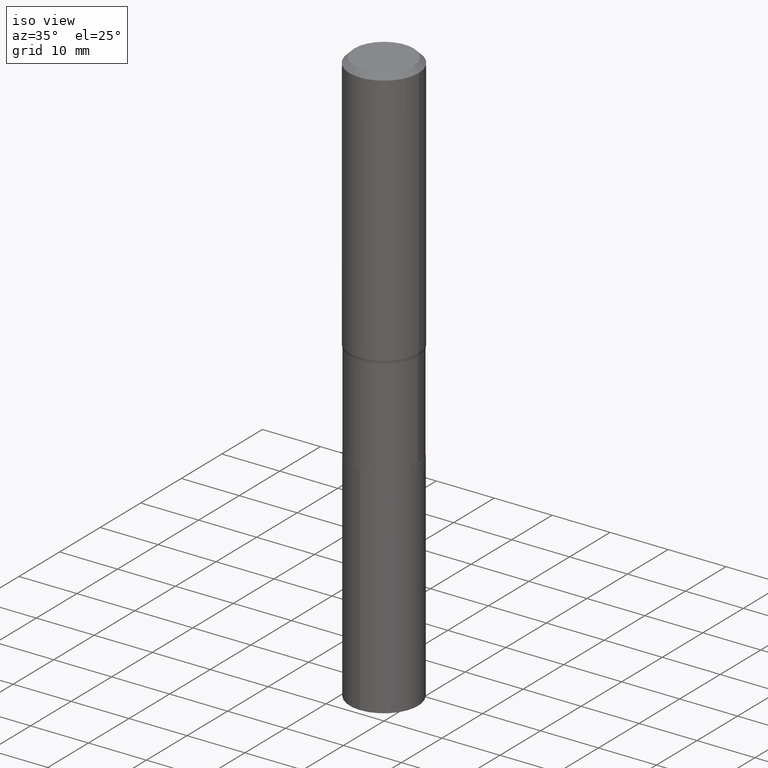
[diagram: clean part render]
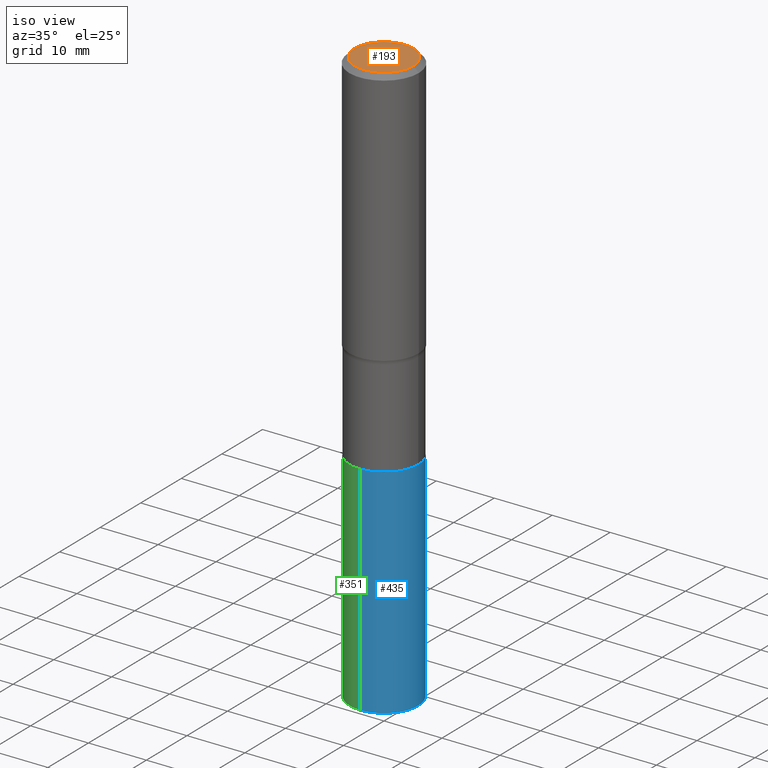
[diagram: same view with three faces highlighted in distinct colors, each labeled with its STEP entity id]
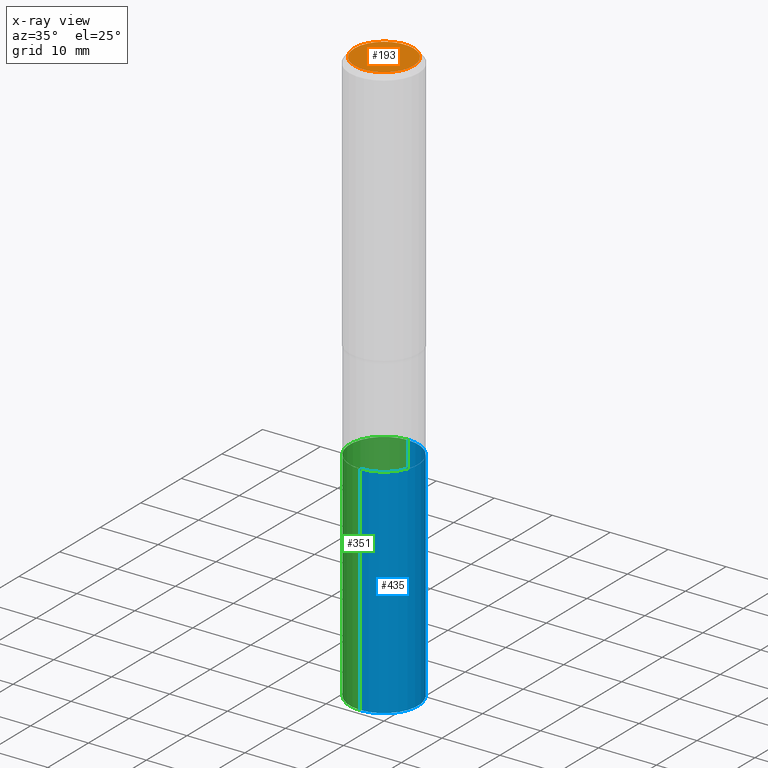
[diagram: x-ray of the same camera — body ghosted, the three highlighted faces saturated]
A machine part, iso view with three faces highlighted in distinct colors.
The next image is the same camera in x-ray (body ghosted, the three faces saturated) — at least one of them is partly hidden behind the body in this view.
Their STEP definitions:

[orange] entity #193 — the highlighted planar face has unit normal (0, -0, -1).
#2 = DIRECTION ( 'NONE',  ( 2.438088387897960049E-29, -3.491481338843145188E-15, -1.000000000000000000 ) ) ;
#13 = ORIENTED_EDGE ( 'NONE', *, *, #346, .T. ) ;
#62 = CARTESIAN_POINT ( 'NONE',  ( -0.2007700000000000040, 1.463821008716677338E-15, 4.096137381438094301E-18 ) ) ;
#63 = ORIENTED_EDGE ( 'NONE', *, *, #291, .T. ) ;
#69 = CARTESIAN_POINT ( 'NONE',  ( -1.001697619218023151E-46, 1.430158722866391908E-32, 4.096137381448114529E-18 ) ) ;
#90 = AXIS2_PLACEMENT_3D ( 'NONE', #69, #240, #102 ) ;
#99 = VERTEX_POINT ( 'NONE', #372 ) ;
#102 = DIRECTION ( 'NONE',  ( 1.000000000000000000, -6.982962677686266711E-15, 4.876140833081945105E-29 ) ) ;
#171 = CIRCLE ( 'NONE', #201, 0.2007700000000000040 ) ;
#180 = CARTESIAN_POINT ( 'NONE',  ( -5.008488096090115757E-47, 7.150793614331959538E-33, 2.048068690724057264E-18 ) ) ;
#193 = ADVANCED_FACE ( 'NONE', ( #417 ), #374, .F. ) ;
#201 = AXIS2_PLACEMENT_3D ( 'NONE', #319, #407, #364 ) ;
#240 = DIRECTION ( 'NONE',  ( -2.445468806185136597E-29, 3.491481338843145583E-15, 1.000000000000000000 ) ) ;
#247 = AXIS2_PLACEMENT_3D ( 'NONE', #180, #2, #292 ) ;
#250 = VERTEX_POINT ( 'NONE', #62 ) ;
#268 = CIRCLE ( 'NONE', #90, 0.2007700000000000040 ) ;
#284 = EDGE_LOOP ( 'NONE', ( #13, #63 ) ) ;
#291 = EDGE_CURVE ( 'NONE', #99, #250, #268, .T. ) ;
#292 = DIRECTION ( 'NONE',  ( -1.000000000000000000, 6.982962677686265922E-15, -4.876176775795935793E-29 ) ) ;
#319 = CARTESIAN_POINT ( 'NONE',  ( -1.001697619218023151E-46, 1.430158722866391908E-32, 4.096137381448114529E-18 ) ) ;
#346 = EDGE_CURVE ( 'NONE', #250, #99, #171, .T. ) ;
#364 = DIRECTION ( 'NONE',  ( 1.000000000000000000, -6.982962677686266711E-15, 4.876140833081945105E-29 ) ) ;
#372 = CARTESIAN_POINT ( 'NONE',  ( 0.2007700000000000040, -1.560767496960719672E-15, 4.096137381458473721E-18 ) ) ;
#374 = PLANE ( 'NONE',  #247 ) ;
#407 = DIRECTION ( 'NONE',  ( -2.445468806185136597E-29, 3.491481338843145583E-15, 1.000000000000000000 ) ) ;
#417 = FACE_OUTER_BOUND ( 'NONE', #284, .T. ) ;

[blue] entity #435 — the highlighted cylindrical surface (partial cylindrical patch) has radius 5.9004 mm, axis along (-0, 0, 1).
#3 = DIRECTION ( 'NONE',  ( -6.982962677686265922E-15, -1.000000000000000000, 3.527999991817817286E-15 ) ) ;
#8 = FACE_OUTER_BOUND ( 'NONE', #26, .T. ) ;
#9 = CIRCLE ( 'NONE', #163, 0.2323000000000000065 ) ;
#16 = VERTEX_POINT ( 'NONE', #221 ) ;
#20 = AXIS2_PLACEMENT_3D ( 'NONE', #295, #47, #3 ) ;
#22 = LINE ( 'NONE', #329, #83 ) ;
#26 = EDGE_LOOP ( 'NONE', ( #278, #65, #206, #325 ) ) ;
#47 = DIRECTION ( 'NONE',  ( -2.445425754346182208E-29, 3.491542991526886614E-15, 1.000000000000000000 ) ) ;
#64 = CARTESIAN_POINT ( 'NONE',  ( 5.969144809017299038E-29, -8.522356799982232966E-15, -2.440900000000000070 ) ) ;
#65 = ORIENTED_EDGE ( 'NONE', *, *, #294, .T. ) ;
#70 = CARTESIAN_POINT ( 'NONE',  ( -1.622142230026423645E-15, -0.2323000000000136622, -3.921844707738493696 ) ) ;
#80 = CYLINDRICAL_SURFACE ( 'NONE', #20, 0.2323000000000000065 ) ;
#83 = VECTOR ( 'NONE', #287, 39.37007874015748143 ) ;
#108 = EDGE_CURVE ( 'NONE', #165, #16, #186, .T. ) ;
#117 = CARTESIAN_POINT ( 'NONE',  ( 9.590685138083693087E-29, -1.369313891512540688E-14, -3.921844707738494140 ) ) ;
#145 = CARTESIAN_POINT ( 'NONE',  ( -1.622142230026459933E-15, -0.2323000000000085552, -2.440899999999999181 ) ) ;
#151 = DIRECTION ( 'NONE',  ( -2.445425754346182208E-29, 3.491542991526886220E-15, 1.000000000000000000 ) ) ;
#163 = AXIS2_PLACEMENT_3D ( 'NONE', #64, #237, #204 ) ;
#165 = VERTEX_POINT ( 'NONE', #70 ) ;
#186 = CIRCLE ( 'NONE', #279, 0.2323000000000000065 ) ;
#204 = DIRECTION ( 'NONE',  ( -6.982962677686265922E-15, -1.000000000000000000, 3.527999991817817286E-15 ) ) ;
#206 = ORIENTED_EDGE ( 'NONE', *, *, #356, .F. ) ;
#221 = CARTESIAN_POINT ( 'NONE',  ( 1.650590775170807836E-15, 0.2322999999999862675, -3.921844707738494584 ) ) ;
#237 = DIRECTION ( 'NONE',  ( -2.445425754346182208E-29, 3.491542991526886614E-15, 1.000000000000000000 ) ) ;
#262 = DIRECTION ( 'NONE',  ( -2.445425754346182208E-29, 3.491542991526886614E-15, 1.000000000000000000 ) ) ;
#278 = ORIENTED_EDGE ( 'NONE', *, *, #108, .T. ) ;
#279 = AXIS2_PLACEMENT_3D ( 'NONE', #117, #262, #425 ) ;
#287 = DIRECTION ( 'NONE',  ( -2.445425754346182208E-29, 3.491542991526886220E-15, 1.000000000000000000 ) ) ;
#288 = VECTOR ( 'NONE', #151, 39.37007874015748143 ) ;
#294 = EDGE_CURVE ( 'NONE', #16, #348, #22, .T. ) ;
#295 = CARTESIAN_POINT ( 'NONE',  ( 5.969144809017299038E-29, -8.522356799982232966E-15, -2.440900000000000070 ) ) ;
#308 = VERTEX_POINT ( 'NONE', #485 ) ;
#325 = ORIENTED_EDGE ( 'NONE', *, *, #448, .F. ) ;
#329 = CARTESIAN_POINT ( 'NONE',  ( 1.650590775170772140E-15, 0.2322999999999914578, -2.440900000000000514 ) ) ;
#348 = VERTEX_POINT ( 'NONE', #440 ) ;
#356 = EDGE_CURVE ( 'NONE', #308, #348, #9, .T. ) ;
#425 = DIRECTION ( 'NONE',  ( -6.982962677686265922E-15, -1.000000000000000000, 2.351999994545211393E-15 ) ) ;
#435 = ADVANCED_FACE ( 'NONE', ( #8 ), #80, .T. ) ;
#440 = CARTESIAN_POINT ( 'NONE',  ( 1.650590775170808822E-15, 0.2322999999999914578, -2.440900000000000514 ) ) ;
#448 = EDGE_CURVE ( 'NONE', #165, #308, #468, .T. ) ;
#468 = LINE ( 'NONE', #145, #288 ) ;
#485 = CARTESIAN_POINT ( 'NONE',  ( -1.622142230026459933E-15, -0.2323000000000085552, -2.440899999999999181 ) ) ;

[green] entity #351 — the highlighted cylindrical surface (partial cylindrical patch) has radius 5.9004 mm, axis along (-0, 0, 1).
#10 = DIRECTION ( 'NONE',  ( -6.982962677686265922E-15, -1.000000000000000000, 2.351999994545211393E-15 ) ) ;
#16 = VERTEX_POINT ( 'NONE', #221 ) ;
#17 = ORIENTED_EDGE ( 'NONE', *, *, #205, .F. ) ;
#22 = LINE ( 'NONE', #329, #83 ) ;
#35 = CARTESIAN_POINT ( 'NONE',  ( 9.590685138083693087E-29, -1.369313891512540688E-14, -3.921844707738494140 ) ) ;
#39 = AXIS2_PLACEMENT_3D ( 'NONE', #173, #326, #93 ) ;
#70 = CARTESIAN_POINT ( 'NONE',  ( -1.622142230026423645E-15, -0.2323000000000136622, -3.921844707738493696 ) ) ;
#82 = CIRCLE ( 'NONE', #191, 0.2323000000000000065 ) ;
#83 = VECTOR ( 'NONE', #287, 39.37007874015748143 ) ;
#93 = DIRECTION ( 'NONE',  ( -6.982962677686265922E-15, -1.000000000000000000, 3.527999991817817286E-15 ) ) ;
#113 = EDGE_CURVE ( 'NONE', #16, #165, #82, .T. ) ;
#121 = DIRECTION ( 'NONE',  ( -6.982962677686265922E-15, -1.000000000000000000, 3.527999991817817286E-15 ) ) ;
#124 = ORIENTED_EDGE ( 'NONE', *, *, #448, .T. ) ;
#138 = ORIENTED_EDGE ( 'NONE', *, *, #113, .T. ) ;
#145 = CARTESIAN_POINT ( 'NONE',  ( -1.622142230026459933E-15, -0.2323000000000085552, -2.440899999999999181 ) ) ;
#151 = DIRECTION ( 'NONE',  ( -2.445425754346182208E-29, 3.491542991526886220E-15, 1.000000000000000000 ) ) ;
#154 = DIRECTION ( 'NONE',  ( -2.445425754346182208E-29, 3.491542991526886614E-15, 1.000000000000000000 ) ) ;
#165 = VERTEX_POINT ( 'NONE', #70 ) ;
#173 = CARTESIAN_POINT ( 'NONE',  ( 5.969144809017299038E-29, -8.522356799982232966E-15, -2.440900000000000070 ) ) ;
#191 = AXIS2_PLACEMENT_3D ( 'NONE', #35, #154, #10 ) ;
#194 = ORIENTED_EDGE ( 'NONE', *, *, #294, .F. ) ;
#205 = EDGE_CURVE ( 'NONE', #348, #308, #210, .T. ) ;
#210 = CIRCLE ( 'NONE', #397, 0.2323000000000000065 ) ;
#221 = CARTESIAN_POINT ( 'NONE',  ( 1.650590775170807836E-15, 0.2322999999999862675, -3.921844707738494584 ) ) ;
#227 = DIRECTION ( 'NONE',  ( -2.445425754346182208E-29, 3.491542991526886614E-15, 1.000000000000000000 ) ) ;
#239 = EDGE_LOOP ( 'NONE', ( #194, #138, #124, #17 ) ) ;
#243 = FACE_OUTER_BOUND ( 'NONE', #239, .T. ) ;
#287 = DIRECTION ( 'NONE',  ( -2.445425754346182208E-29, 3.491542991526886220E-15, 1.000000000000000000 ) ) ;
#288 = VECTOR ( 'NONE', #151, 39.37007874015748143 ) ;
#294 = EDGE_CURVE ( 'NONE', #16, #348, #22, .T. ) ;
#306 = CARTESIAN_POINT ( 'NONE',  ( 5.969144809017299038E-29, -8.522356799982232966E-15, -2.440900000000000070 ) ) ;
#308 = VERTEX_POINT ( 'NONE', #485 ) ;
#326 = DIRECTION ( 'NONE',  ( -2.445425754346182208E-29, 3.491542991526886614E-15, 1.000000000000000000 ) ) ;
#329 = CARTESIAN_POINT ( 'NONE',  ( 1.650590775170772140E-15, 0.2322999999999914578, -2.440900000000000514 ) ) ;
#348 = VERTEX_POINT ( 'NONE', #440 ) ;
#351 = ADVANCED_FACE ( 'NONE', ( #243 ), #480, .T. ) ;
#397 = AXIS2_PLACEMENT_3D ( 'NONE', #306, #227, #121 ) ;
#440 = CARTESIAN_POINT ( 'NONE',  ( 1.650590775170808822E-15, 0.2322999999999914578, -2.440900000000000514 ) ) ;
#448 = EDGE_CURVE ( 'NONE', #165, #308, #468, .T. ) ;
#468 = LINE ( 'NONE', #145, #288 ) ;
#480 = CYLINDRICAL_SURFACE ( 'NONE', #39, 0.2323000000000000065 ) ;
#485 = CARTESIAN_POINT ( 'NONE',  ( -1.622142230026459933E-15, -0.2323000000000085552, -2.440899999999999181 ) ) ;